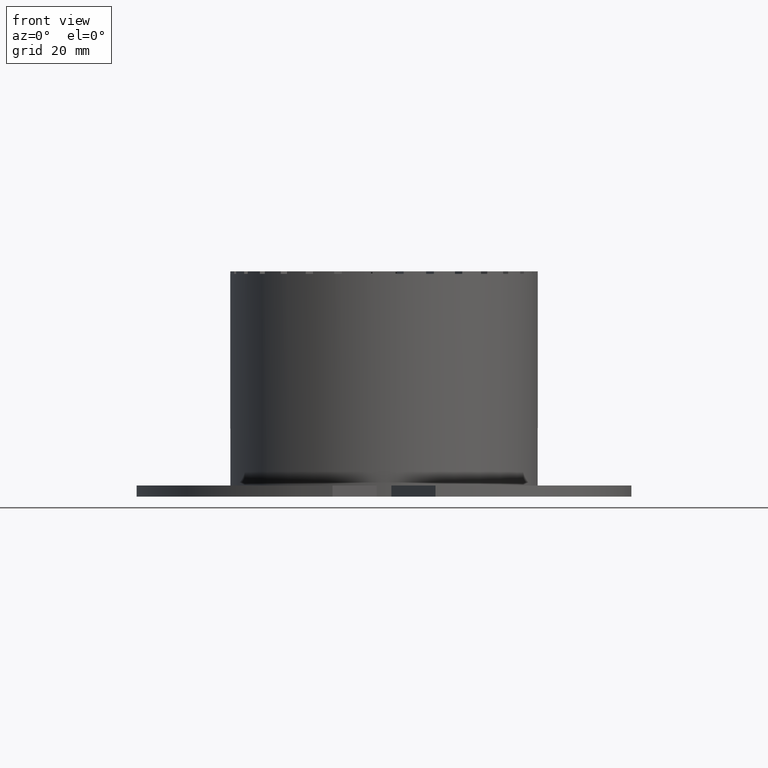
[diagram: clean part render]
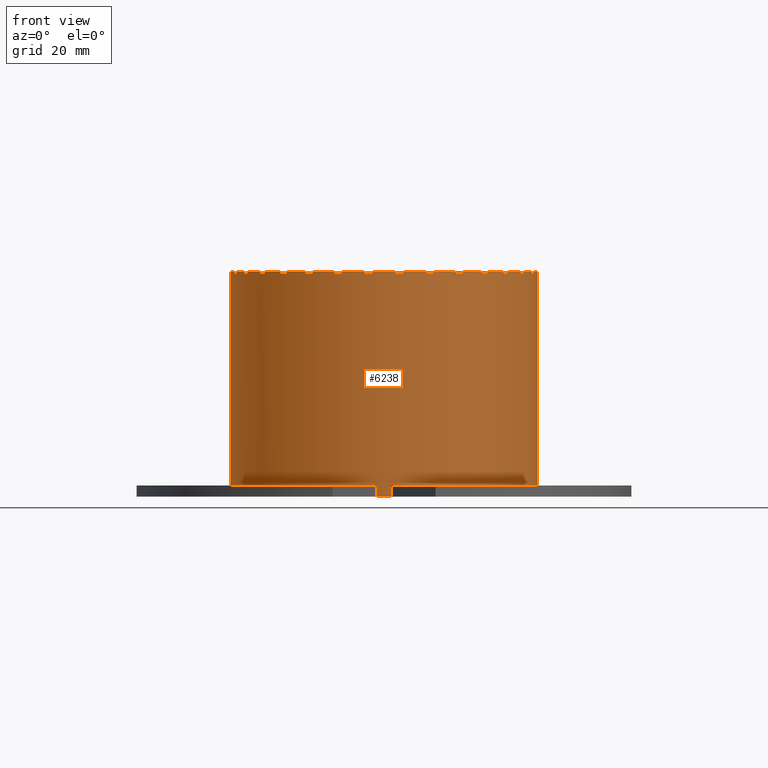
[diagram: same view with one face highlighted and labeled with its STEP entity id]
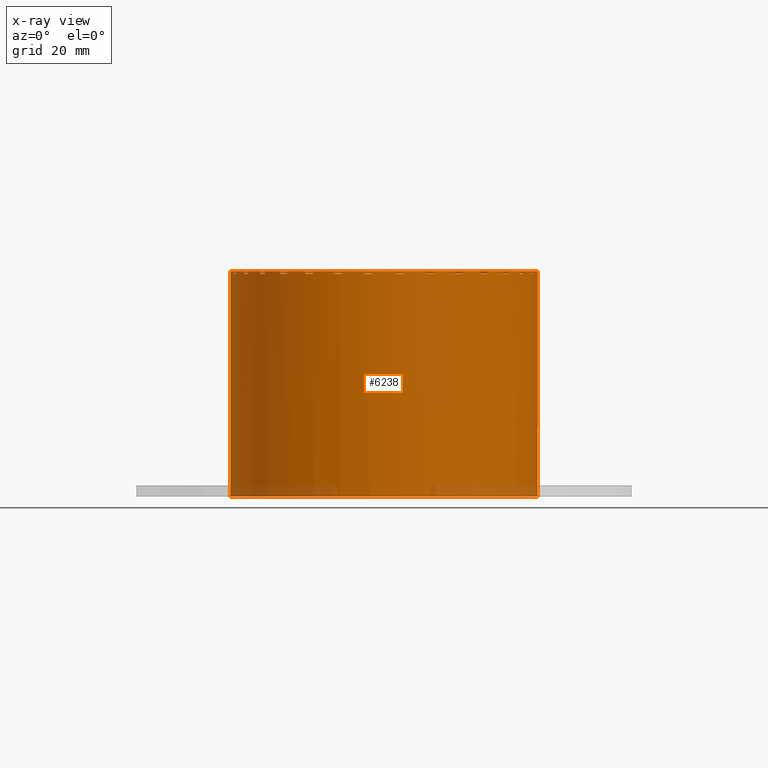
[diagram: x-ray of the same camera — body ghosted, the highlighted face saturated]
A machine part, front view. The second image highlights one B-rep face of the part: STEP entity #6238.
The next image is the same camera in x-ray: the body ghosted, the highlighted face saturated — about 4% of this face is hidden behind the body in this view.
In plain terms, the highlighted cylindrical surface (partial cylindrical patch) has radius 41.5 mm, axis along (0, 0, 1).
Its self-contained STEP definition (entity closure, byte-faithful):
#75=CARTESIAN_POINT('',(1.102660488795173,41.48534849614321,30.749999999999996));
#76=VERTEX_POINT('',#75);
#83=CARTESIAN_POINT('',(1.102660488795173,41.48534849614321,30.050000000000004));
#84=VERTEX_POINT('',#83);
#85=CARTESIAN_POINT('',(1.102660488795173,41.48534849614321,30.050000000000004));
#86=DIRECTION('',(0.0,0.0,1.0));
#87=VECTOR('',#86,0.699999999999996);
#88=LINE('',#85,#87);
#89=EDGE_CURVE('',#84,#76,#88,.T.);
#137=CARTESIAN_POINT('',(7.270850293824927,40.858104899821122,30.749999999999996));
#138=VERTEX_POINT('',#137);
#163=CARTESIAN_POINT('',(7.270850293824927,40.858104899821122,30.050000000000004));
#164=VERTEX_POINT('',#163);
#171=CARTESIAN_POINT('',(7.270850293824927,40.858104899821122,30.050000000000004));
#172=DIRECTION('',(0.0,0.0,1.0));
#173=VECTOR('',#172,0.699999999999996);
#174=LINE('',#171,#173);
#175=EDGE_CURVE('',#164,#138,#174,.T.);
#267=CARTESIAN_POINT('',(0.0,0.0,30.75));
#268=DIRECTION('',(0.0,0.0,-1.0));
#269=DIRECTION('',(0.198937622570728,0.980012154172542,0.0));
#270=AXIS2_PLACEMENT_3D('',#267,#268,#269);
#271=CIRCLE('',#270,41.5);
#272=EDGE_CURVE('',#76,#138,#271,.T.);
#284=CARTESIAN_POINT('',(9.431028221446931,40.4141770507117,30.749999999999996));
#285=VERTEX_POINT('',#284);
#292=CARTESIAN_POINT('',(9.431028221446931,40.4141770507117,30.050000000000004));
#293=VERTEX_POINT('',#292);
#294=CARTESIAN_POINT('',(9.431028221446931,40.4141770507117,30.050000000000004));
#295=DIRECTION('',(0.0,0.0,1.0));
#296=VECTOR('',#295,0.699999999999996);
#297=LINE('',#294,#296);
#298=EDGE_CURVE('',#293,#285,#297,.T.);
#330=CARTESIAN_POINT('',(15.346691611127238,38.558125688276888,30.749999999999996));
#331=VERTEX_POINT('',#330);
#356=CARTESIAN_POINT('',(15.346691611127238,38.558125688276888,30.050000000000004));
#357=VERTEX_POINT('',#356);
#364=CARTESIAN_POINT('',(15.346691611127238,38.558125688276888,30.050000000000004));
#365=DIRECTION('',(0.0,0.0,1.0));
#366=VECTOR('',#365,0.699999999999996);
#367=LINE('',#364,#366);
#368=EDGE_CURVE('',#357,#331,#367,.T.);
#421=CARTESIAN_POINT('',(0.0,0.0,30.75));
#422=DIRECTION('',(0.0,0.0,-1.0));
#423=DIRECTION('',(0.392140354053448,0.919905398789917,0.0));
#424=AXIS2_PLACEMENT_3D('',#421,#422,#423);
#425=CIRCLE('',#424,41.5);
#426=EDGE_CURVE('',#285,#331,#425,.T.);
#438=CARTESIAN_POINT('',(17.373288550613886,37.688444448359895,30.749999999999996));
#439=VERTEX_POINT('',#438);
#446=CARTESIAN_POINT('',(17.373288550613886,37.688444448359895,30.050000000000004));
#447=VERTEX_POINT('',#446);
#448=CARTESIAN_POINT('',(17.373288550613886,37.688444448359895,30.050000000000004));
#449=DIRECTION('',(0.0,0.0,1.0));
#450=VECTOR('',#449,0.699999999999996);
#451=LINE('',#448,#450);
#452=EDGE_CURVE('',#447,#439,#451,.T.);
#484=CARTESIAN_POINT('',(22.794237570710294,34.679572280667195,30.749999999999996));
#485=VERTEX_POINT('',#484);
#510=CARTESIAN_POINT('',(22.794237570710294,34.679572280667195,30.050000000000004));
#511=VERTEX_POINT('',#510);
#518=CARTESIAN_POINT('',(22.794237570710294,34.679572280667195,30.050000000000004));
#519=DIRECTION('',(0.0,0.0,1.0));
#520=VECTOR('',#519,0.699999999999996);
#521=LINE('',#518,#520);
#522=EDGE_CURVE('',#511,#485,#521,.T.);
#575=CARTESIAN_POINT('',(0.0,0.0,30.75));
#576=DIRECTION('',(0.0,0.0,-1.0));
#577=DIRECTION('',(0.569288813366686,0.822137608296537,0.0));
#578=AXIS2_PLACEMENT_3D('',#575,#576,#577);
#579=CIRCLE('',#578,41.499999999999993);
#580=EDGE_CURVE('',#439,#485,#579,.T.);
#592=CARTESIAN_POINT('',(24.604284405243977,33.419742502088042,30.749999999999996));
#593=VERTEX_POINT('',#592);
#600=CARTESIAN_POINT('',(24.604284405243977,33.419742502088042,30.050000000000004));
#601=VERTEX_POINT('',#600);
#602=CARTESIAN_POINT('',(24.604284405243977,33.419742502088042,30.050000000000004));
#603=DIRECTION('',(0.0,0.0,1.0));
#604=VECTOR('',#603,0.699999999999996);
#605=LINE('',#602,#604);
#606=EDGE_CURVE('',#601,#593,#605,.T.);
#638=CARTESIAN_POINT('',(29.308584765939276,29.381233109210257,30.749999999999996));
#639=VERTEX_POINT('',#638);
#664=CARTESIAN_POINT('',(29.308584765939276,29.381233109210257,30.050000000000004));
#665=VERTEX_POINT('',#664);
#672=CARTESIAN_POINT('',(29.308584765939276,29.381233109210257,30.050000000000004));
#673=DIRECTION('',(0.0,0.0,1.0));
#674=VECTOR('',#673,0.699999999999996);
#675=LINE('',#672,#674);
#676=EDGE_CURVE('',#665,#639,#675,.T.);
#729=CARTESIAN_POINT('',(0.0,0.0,30.75));
#730=DIRECTION('',(0.0,0.0,-1.0));
#731=DIRECTION('',(0.723130521772095,0.690711407522431,0.0));
#732=AXIS2_PLACEMENT_3D('',#729,#730,#731);
#733=CIRCLE('',#732,41.5);
#734=EDGE_CURVE('',#593,#639,#733,.T.);
#746=CARTESIAN_POINT('',(30.827977965442706,27.782832371127686,30.749999999999996));
#747=VERTEX_POINT('',#746);
#754=CARTESIAN_POINT('',(30.827977965442706,27.782832371127686,30.050000000000004));
#755=VERTEX_POINT('',#754);
#756=CARTESIAN_POINT('',(30.827977965442706,27.782832371127686,30.050000000000004));
#757=DIRECTION('',(0.0,0.0,1.0));
#758=VECTOR('',#757,0.699999999999996);
#759=LINE('',#756,#758);
#760=EDGE_CURVE('',#755,#747,#759,.T.);
#792=CARTESIAN_POINT('',(34.623035057238219,22.880022802113949,30.749999999999996));
#793=VERTEX_POINT('',#792);
#818=CARTESIAN_POINT('',(34.623035057238219,22.880022802113949,30.050000000000004));
#819=VERTEX_POINT('',#818);
#826=CARTESIAN_POINT('',(34.623035057238219,22.880022802113949,30.050000000000004));
#827=DIRECTION('',(0.0,0.0,1.0));
#828=VECTOR('',#827,0.699999999999996);
#829=LINE('',#826,#828);
#830=EDGE_CURVE('',#819,#793,#829,.T.);
#883=CARTESIAN_POINT('',(0.0,0.0,30.75));
#884=DIRECTION('',(0.0,0.0,-1.0));
#885=DIRECTION('',(0.847367181651927,0.531007400569211,0.0));
#886=AXIS2_PLACEMENT_3D('',#883,#884,#885);
#887=CIRCLE('',#886,41.5);
#888=EDGE_CURVE('',#747,#793,#887,.T.);
#900=CARTESIAN_POINT('',(35.78957048560261,21.008489818549158,30.749999999999996));
#901=VERTEX_POINT('',#900);
#908=CARTESIAN_POINT('',(35.78957048560261,21.008489818549158,30.050000000000004));
#909=VERTEX_POINT('',#908);
#910=CARTESIAN_POINT('',(35.78957048560261,21.008489818549158,30.050000000000004));
#911=DIRECTION('',(0.0,0.0,1.0));
#912=VECTOR('',#911,0.699999999999996);
#913=LINE('',#910,#912);
#914=EDGE_CURVE('',#909,#901,#913,.T.);
#946=CARTESIAN_POINT('',(38.520014225259935,15.442101673210558,30.749999999999996));
#947=VERTEX_POINT('',#946);
#972=CARTESIAN_POINT('',(38.520014225259935,15.442101673210558,30.050000000000004));
#973=VERTEX_POINT('',#972);
#980=CARTESIAN_POINT('',(38.520014225259935,15.442101673210558,30.050000000000004));
#981=DIRECTION('',(0.0,0.0,1.0));
#982=VECTOR('',#981,0.699999999999996);
#983=LINE('',#980,#982);
#984=EDGE_CURVE('',#973,#947,#983,.T.);
#1037=CARTESIAN_POINT('',(0.0,0.0,30.75));
#1038=DIRECTION('',(0.0,0.0,-1.0));
#1039=DIRECTION('',(0.936912529553512,0.349563888245967,0.0));
#1040=AXIS2_PLACEMENT_3D('',#1037,#1038,#1039);
#1041=CIRCLE('',#1040,41.499999999999986);
#1042=EDGE_CURVE('',#901,#947,#1041,.T.);
#1054=CARTESIAN_POINT('',(39.285933784985964,13.374057224406496,30.749999999999996));
#1055=VERTEX_POINT('',#1054);
#1062=CARTESIAN_POINT('',(39.285933784985964,13.374057224406496,30.050000000000004));
#1063=VERTEX_POINT('',#1062);
#1064=CARTESIAN_POINT('',(39.285933784985964,13.374057224406496,30.050000000000004));
#1065=DIRECTION('',(0.0,0.0,1.0));
#1066=VECTOR('',#1065,0.699999999999996);
#1067=LINE('',#1064,#1066);
#1068=EDGE_CURVE('',#1063,#1055,#1067,.T.);
#1100=CARTESIAN_POINT('',(40.839979484990032,7.371979087436024,30.749999999999996));
#1101=VERTEX_POINT('',#1100);
#1126=CARTESIAN_POINT('',(40.839979484990032,7.371979087436024,30.050000000000004));
#1127=VERTEX_POINT('',#1126);
#1134=CARTESIAN_POINT('',(40.839979484990032,7.371979087436024,30.050000000000004));
#1135=DIRECTION('',(0.0,0.0,1.0));
#1136=VECTOR('',#1135,0.699999999999996);
#1137=LINE('',#1134,#1136);
#1138=EDGE_CURVE('',#1127,#1101,#1137,.T.);
#1191=CARTESIAN_POINT('',(0.0,0.0,30.75));
#1192=DIRECTION('',(0.0,0.0,-1.0));
#1193=DIRECTION('',(0.988100568412629,0.153809189265921,0.0));
#1194=AXIS2_PLACEMENT_3D('',#1191,#1192,#1193);
#1195=CIRCLE('',#1194,41.499999999999993);
#1196=EDGE_CURVE('',#1055,#1101,#1195,.T.);
#1208=CARTESIAN_POINT('',(41.173926339310768,5.192089156111627,30.749999999999996));
#1209=VERTEX_POINT('',#1208);
#1216=CARTESIAN_POINT('',(41.173926339310768,5.192089156111627,30.050000000000004));
#1217=VERTEX_POINT('',#1216);
#1218=CARTESIAN_POINT('',(41.173926339310768,5.192089156111627,30.050000000000004));
#1219=DIRECTION('',(0.0,0.0,1.0));
#1220=VECTOR('',#1219,0.699999999999996);
#1221=LINE('',#1218,#1220);
#1222=EDGE_CURVE('',#1217,#1209,#1221,.T.);
#1254=CARTESIAN_POINT('',(41.487951186110791,-0.999953188348903,30.749999999999996));
#1255=VERTEX_POINT('',#1254);
#1280=CARTESIAN_POINT('',(41.487951186110791,-0.999953188348903,30.050000000000004));
#1281=VERTEX_POINT('',#1280);
#1288=CARTESIAN_POINT('',(41.487951186110791,-0.999953188348903,30.050000000000004));
#1289=DIRECTION('',(0.0,0.0,1.0));
#1290=VECTOR('',#1289,0.699999999999996);
#1291=LINE('',#1288,#1290);
#1292=EDGE_CURVE('',#1281,#1255,#1291,.T.);
#1345=CARTESIAN_POINT('',(0.0,0.0,30.75));
#1346=DIRECTION('',(0.0,0.0,-1.0));
#1347=DIRECTION('',(0.998835653904045,-0.048242475994485,0.0));
#1348=AXIS2_PLACEMENT_3D('',#1345,#1346,#1347);
#1349=CIRCLE('',#1348,41.5);
#1350=EDGE_CURVE('',#1209,#1255,#1349,.T.);
#1362=CARTESIAN_POINT('',(41.37625351157326,-3.202443652279027,30.749999999999996));
#1363=VERTEX_POINT('',#1362);
#1370=CARTESIAN_POINT('',(41.37625351157326,-3.202443652279027,30.050000000000004));
#1371=VERTEX_POINT('',#1370);
#1372=CARTESIAN_POINT('',(41.37625351157326,-3.202443652279027,30.050000000000004));
#1373=DIRECTION('',(0.0,0.0,1.0));
#1374=VECTOR('',#1373,0.699999999999996);
#1375=LINE('',#1372,#1374);
#1376=EDGE_CURVE('',#1371,#1363,#1375,.T.);
#1408=CARTESIAN_POINT('',(40.437401291044885,-9.33094726311332,30.749999999999996));
#1409=VERTEX_POINT('',#1408);
#1434=CARTESIAN_POINT('',(40.437401291044885,-9.33094726311332,30.050000000000004));
#1435=VERTEX_POINT('',#1434);
#1442=CARTESIAN_POINT('',(40.437401291044885,-9.33094726311332,30.050000000000004));
#1443=DIRECTION('',(0.0,0.0,1.0));
#1444=VECTOR('',#1443,0.699999999999996);
#1445=LINE('',#1442,#1444);
#1446=EDGE_CURVE('',#1435,#1409,#1445,.T.);
#1499=CARTESIAN_POINT('',(0.0,0.0,30.75));
#1500=DIRECTION('',(0.0,0.0,-1.0));
#1501=DIRECTION('',(0.968678290366424,-0.248319088619426,0.0));
#1502=AXIS2_PLACEMENT_3D('',#1499,#1500,#1501);
#1503=CIRCLE('',#1502,41.499999999999993);
#1504=EDGE_CURVE('',#1363,#1409,#1503,.T.);
#1516=CARTESIAN_POINT('',(39.884632003568591,-11.465868041274216,30.749999999999996));
#1517=VERTEX_POINT('',#1516);
#1524=CARTESIAN_POINT('',(39.884632003568591,-11.465868041274216,30.050000000000004));
#1525=VERTEX_POINT('',#1524);
#1526=CARTESIAN_POINT('',(39.884632003568591,-11.465868041274216,30.050000000000004));
#1527=DIRECTION('',(0.0,0.0,1.0));
#1528=VECTOR('',#1527,0.699999999999996);
#1529=LINE('',#1526,#1528);
#1530=EDGE_CURVE('',#1525,#1517,#1529,.T.);
#1562=CARTESIAN_POINT('',(37.731339435930707,-17.279931260586118,30.749999999999996));
#1563=VERTEX_POINT('',#1562);
#1588=CARTESIAN_POINT('',(37.731339435930707,-17.279931260586118,30.050000000000004));
#1589=VERTEX_POINT('',#1588);
#1596=CARTESIAN_POINT('',(37.731339435930707,-17.279931260586118,30.050000000000004));
#1597=DIRECTION('',(0.0,0.0,1.0));
#1598=VECTOR('',#1597,0.699999999999996);
#1599=LINE('',#1596,#1598);
#1600=EDGE_CURVE('',#1589,#1563,#1599,.T.);
#1653=CARTESIAN_POINT('',(0.0,0.0,30.75));
#1654=DIRECTION('',(0.0,0.0,-1.0));
#1655=DIRECTION('',(0.898863123806335,-0.438229488580033,0.0));
#1656=AXIS2_PLACEMENT_3D('',#1653,#1654,#1655);
#1657=CIRCLE('',#1656,41.499999999999993);
#1658=EDGE_CURVE('',#1517,#1563,#1657,.T.);
#1670=CARTESIAN_POINT('',(36.760128975092542,-19.259878445477355,30.749999999999996));
#1671=VERTEX_POINT('',#1670);
#1678=CARTESIAN_POINT('',(36.760128975092542,-19.259878445477355,30.050000000000004));
#1679=VERTEX_POINT('',#1678);
#1680=CARTESIAN_POINT('',(36.760128975092542,-19.259878445477355,30.050000000000004));
#1681=DIRECTION('',(0.0,0.0,1.0));
#1682=VECTOR('',#1681,0.699999999999996);
#1683=LINE('',#1680,#1682);
#1684=EDGE_CURVE('',#1679,#1671,#1683,.T.);
#1716=CARTESIAN_POINT('',(33.480552111065379,-24.521472841944814,30.749999999999996));
#1717=VERTEX_POINT('',#1716);
#1742=CARTESIAN_POINT('',(33.480552111065379,-24.521472841944814,30.050000000000004));
#1743=VERTEX_POINT('',#1742);
#1750=CARTESIAN_POINT('',(33.480552111065379,-24.521472841944814,30.050000000000004));
#1751=DIRECTION('',(0.0,0.0,1.0));
#1752=VECTOR('',#1751,0.699999999999996);
#1753=LINE('',#1750,#1752);
#1754=EDGE_CURVE('',#1743,#1717,#1753,.T.);
#1807=CARTESIAN_POINT('',(0.0,0.0,30.75));
#1808=DIRECTION('',(0.0,0.0,-1.0));
#1809=DIRECTION('',(0.792248395345682,-0.610198721788396,0.0));
#1810=AXIS2_PLACEMENT_3D('',#1807,#1808,#1809);
#1811=CIRCLE('',#1810,41.5);
#1812=EDGE_CURVE('',#1671,#1717,#1811,.T.);
#1824=CARTESIAN_POINT('',(32.130661947244427,-26.265387163183036,30.749999999999996));
#1825=VERTEX_POINT('',#1824);
#1832=CARTESIAN_POINT('',(32.130661947244427,-26.265387163183036,30.050000000000004));
#1833=VERTEX_POINT('',#1832);
#1834=CARTESIAN_POINT('',(32.130661947244427,-26.265387163183036,30.050000000000004));
#1835=DIRECTION('',(0.0,0.0,1.0));
#1836=VECTOR('',#1835,0.699999999999996);
#1837=LINE('',#1834,#1836);
#1838=EDGE_CURVE('',#1833,#1825,#1837,.T.);
#1870=CARTESIAN_POINT('',(27.85906704897517,-30.759102444003574,30.749999999999996));
#1871=VERTEX_POINT('',#1870);
#1896=CARTESIAN_POINT('',(27.85906704897517,-30.759102444003574,30.050000000000004));
#1897=VERTEX_POINT('',#1896);
#1904=CARTESIAN_POINT('',(27.85906704897517,-30.759102444003574,30.050000000000004));
#1905=DIRECTION('',(0.0,0.0,1.0));
#1906=VECTOR('',#1905,0.699999999999996);
#1907=LINE('',#1904,#1906);
#1908=EDGE_CURVE('',#1897,#1871,#1907,.T.);
#1961=CARTESIAN_POINT('',(0.0,0.0,30.75));
#1962=DIRECTION('',(0.0,0.0,-1.0));
#1963=DIRECTION('',(0.653198924494342,-0.757186347631437,0.0));
#1964=AXIS2_PLACEMENT_3D('',#1961,#1962,#1963);
#1965=CIRCLE('',#1964,41.5);
#1966=EDGE_CURVE('',#1825,#1871,#1965,.T.);
#1978=CARTESIAN_POINT('',(26.185761844083665,-32.195587844376028,30.749999999999996));
#1979=VERTEX_POINT('',#1978);
#1986=CARTESIAN_POINT('',(26.185761844083665,-32.195587844376028,30.050000000000004));
#1987=VERTEX_POINT('',#1986);
#1988=CARTESIAN_POINT('',(26.185761844083665,-32.195587844376028,30.050000000000004));
#1989=DIRECTION('',(0.0,0.0,1.0));
#1990=VECTOR('',#1989,0.699999999999996);
#1991=LINE('',#1988,#1990);
#1992=EDGE_CURVE('',#1987,#1979,#1991,.T.);
#2024=CARTESIAN_POINT('',(21.097028508598545,-35.737450777963737,30.749999999999996));
#2025=VERTEX_POINT('',#2024);
#2050=CARTESIAN_POINT('',(21.097028508598545,-35.737450777963737,30.050000000000004));
#2051=VERTEX_POINT('',#2050);
#2058=CARTESIAN_POINT('',(21.097028508598545,-35.737450777963737,30.050000000000004));
#2059=DIRECTION('',(0.0,0.0,1.0));
#2060=VECTOR('',#2059,0.699999999999996);
#2061=LINE('',#2058,#2060);
#2062=EDGE_CURVE('',#2051,#2025,#2061,.T.);
#2115=CARTESIAN_POINT('',(0.0,0.0,30.75));
#2116=DIRECTION('',(0.0,0.0,-1.0));
#2117=DIRECTION('',(0.48740741292659,-0.873174675436827,0.0));
#2118=AXIS2_PLACEMENT_3D('',#2115,#2116,#2117);
#2119=CIRCLE('',#2118,41.5);
#2120=EDGE_CURVE('',#1979,#2025,#2119,.T.);
#2132=CARTESIAN_POINT('',(19.168813574329736,-36.807697376399318,30.749999999999996));
#2133=VERTEX_POINT('',#2132);
#2140=CARTESIAN_POINT('',(19.168813574329736,-36.807697376399318,30.050000000000004));
#2141=VERTEX_POINT('',#2140);
#2142=CARTESIAN_POINT('',(19.168813574329736,-36.807697376399318,30.050000000000004));
#2143=DIRECTION('',(0.0,0.0,1.0));
#2144=VECTOR('',#2143,0.699999999999996);
#2145=LINE('',#2142,#2144);
#2146=EDGE_CURVE('',#2141,#2133,#2145,.T.);
#2178=CARTESIAN_POINT('',(13.471275142284306,-39.252703678101895,30.749999999999996));
#2179=VERTEX_POINT('',#2178);
#2204=CARTESIAN_POINT('',(13.471275142284306,-39.252703678101895,30.050000000000004));
#2205=VERTEX_POINT('',#2204);
#2212=CARTESIAN_POINT('',(13.471275142284306,-39.252703678101895,30.050000000000004));
#2213=DIRECTION('',(0.0,0.0,1.0));
#2214=VECTOR('',#2213,0.699999999999996);
#2215=LINE('',#2212,#2214);
#2216=EDGE_CURVE('',#2205,#2179,#2215,.T.);
#2269=CARTESIAN_POINT('',(0.0,0.0,30.75));
#2270=DIRECTION('',(0.0,0.0,-1.0));
#2271=DIRECTION('',(0.301661384605683,-0.953415129436166,0.0));
#2272=AXIS2_PLACEMENT_3D('',#2269,#2270,#2271);
#2273=CIRCLE('',#2272,41.499999999999993);
#2274=EDGE_CURVE('',#2133,#2179,#2273,.T.);
#2286=CARTESIAN_POINT('',(11.367091824602792,-39.912895453112021,30.749999999999996));
#2287=VERTEX_POINT('',#2286);
#2294=CARTESIAN_POINT('',(11.367091824602792,-39.912895453112021,30.050000000000004));
#2295=VERTEX_POINT('',#2294);
#2296=CARTESIAN_POINT('',(11.367091824602792,-39.912895453112021,30.050000000000004));
#2297=DIRECTION('',(0.0,0.0,1.0));
#2298=VECTOR('',#2297,0.699999999999996);
#2299=LINE('',#2296,#2298);
#2300=EDGE_CURVE('',#2295,#2287,#2299,.T.);
#2332=CARTESIAN_POINT('',(5.294006188837324,-41.160946277661708,30.749999999999996));
#2333=VERTEX_POINT('',#2332);
#2358=CARTESIAN_POINT('',(5.294006188837324,-41.160946277661708,30.050000000000004));
#2359=VERTEX_POINT('',#2358);
#2366=CARTESIAN_POINT('',(5.294006188837324,-41.160946277661708,30.050000000000004));
#2367=DIRECTION('',(0.0,0.0,1.0));
#2368=VECTOR('',#2367,0.699999999999996);
#2369=LINE('',#2366,#2368);
#2370=EDGE_CURVE('',#2359,#2333,#2369,.T.);
#2423=CARTESIAN_POINT('',(0.0,0.0,30.75));
#2424=DIRECTION('',(0.0,0.0,-1.0));
#2425=DIRECTION('',(0.103565303755313,-0.994622656014868,0.0));
#2426=AXIS2_PLACEMENT_3D('',#2423,#2424,#2425);
#2427=CIRCLE('',#2426,41.499999999999993);
#2428=EDGE_CURVE('',#2287,#2333,#2427,.T.);
#2440=CARTESIAN_POINT('',(3.100000000000025,-41.384054900408216,30.749999999999996));
#2441=VERTEX_POINT('',#2440);
#2448=CARTESIAN_POINT('',(3.100000000000025,-41.384054900408216,30.050000000000004));
#2449=VERTEX_POINT('',#2448);
#2450=CARTESIAN_POINT('',(3.100000000000025,-41.384054900408216,30.050000000000004));
#2451=DIRECTION('',(0.0,0.0,1.0));
#2452=VECTOR('',#2451,0.699999999999996);
#2453=LINE('',#2450,#2452);
#2454=EDGE_CURVE('',#2449,#2441,#2453,.T.);
#2486=CARTESIAN_POINT('',(-3.099999999999976,-41.384054900408216,30.749999999999996));
#2487=VERTEX_POINT('',#2486);
#2512=CARTESIAN_POINT('',(-3.099999999999976,-41.384054900408216,30.050000000000004));
#2513=VERTEX_POINT('',#2512);
#2520=CARTESIAN_POINT('',(-3.099999999999976,-41.384054900408216,30.050000000000004));
#2521=DIRECTION('',(0.0,0.0,1.0));
#2522=VECTOR('',#2521,0.699999999999996);
#2523=LINE('',#2520,#2522);
#2524=EDGE_CURVE('',#2513,#2487,#2523,.T.);
#2577=CARTESIAN_POINT('',(0.0,0.0,30.75));
#2578=DIRECTION('',(0.0,0.0,-1.0));
#2579=DIRECTION('',(-0.098770752799207,-0.99511021419312,0.0));
#2580=AXIS2_PLACEMENT_3D('',#2577,#2578,#2579);
#2581=CIRCLE('',#2580,41.5);
#2582=EDGE_CURVE('',#2441,#2487,#2581,.T.);
#2594=CARTESIAN_POINT('',(-5.294006188837277,-41.160946277661722,30.749999999999996));
#2595=VERTEX_POINT('',#2594);
#2602=CARTESIAN_POINT('',(-5.294006188837277,-41.160946277661722,30.050000000000004));
#2603=VERTEX_POINT('',#2602);
#2604=CARTESIAN_POINT('',(-5.294006188837277,-41.160946277661722,30.050000000000004));
#2605=DIRECTION('',(0.0,0.0,1.0));
#2606=VECTOR('',#2605,0.699999999999996);
#2607=LINE('',#2604,#2606);
#2608=EDGE_CURVE('',#2603,#2595,#2607,.T.);
#2640=CARTESIAN_POINT('',(-11.367091824602744,-39.912895453112014,30.749999999999996));
#2641=VERTEX_POINT('',#2640);
#2666=CARTESIAN_POINT('',(-11.367091824602744,-39.912895453112014,30.050000000000004));
#2667=VERTEX_POINT('',#2666);
#2674=CARTESIAN_POINT('',(-11.367091824602744,-39.912895453112014,30.050000000000004));
#2675=DIRECTION('',(0.0,0.0,1.0));
#2676=VECTOR('',#2675,0.699999999999996);
#2677=LINE('',#2674,#2676);
#2678=EDGE_CURVE('',#2667,#2641,#2677,.T.);
#2731=CARTESIAN_POINT('',(0.0,0.0,30.75));
#2732=DIRECTION('',(0.0,0.0,-1.0));
#2733=DIRECTION('',(-0.297063123129057,-0.954857843281821,0.0));
#2734=AXIS2_PLACEMENT_3D('',#2731,#2732,#2733);
#2735=CIRCLE('',#2734,41.5);
#2736=EDGE_CURVE('',#2595,#2641,#2735,.T.);
#2748=CARTESIAN_POINT('',(-13.471275142284265,-39.252703678101916,30.749999999999996));
#2749=VERTEX_POINT('',#2748);
#2756=CARTESIAN_POINT('',(-13.471275142284265,-39.252703678101916,30.050000000000004));
#2757=VERTEX_POINT('',#2756);
#2758=CARTESIAN_POINT('',(-13.471275142284265,-39.252703678101916,30.050000000000004));
#2759=DIRECTION('',(0.0,0.0,1.0));
#2760=VECTOR('',#2759,0.699999999999996);
#2761=LINE('',#2758,#2760);
#2762=EDGE_CURVE('',#2757,#2749,#2761,.T.);
#2794=CARTESIAN_POINT('',(-19.168813574329697,-36.807697376399339,30.749999999999996));
#2795=VERTEX_POINT('',#2794);
#2820=CARTESIAN_POINT('',(-19.168813574329697,-36.807697376399339,30.050000000000004));
#2821=VERTEX_POINT('',#2820);
#2828=CARTESIAN_POINT('',(-19.168813574329697,-36.807697376399339,30.050000000000004));
#2829=DIRECTION('',(0.0,0.0,1.0));
#2830=VECTOR('',#2829,0.699999999999996);
#2831=LINE('',#2828,#2830);
#2832=EDGE_CURVE('',#2821,#2795,#2831,.T.);
#2885=CARTESIAN_POINT('',(0.0,0.0,30.75));
#2886=DIRECTION('',(0.0,0.0,-1.0));
#2887=DIRECTION('',(-0.483193694294568,-0.875513480075531,0.0));
#2888=AXIS2_PLACEMENT_3D('',#2885,#2886,#2887);
#2889=CIRCLE('',#2888,41.499999999999993);
#2890=EDGE_CURVE('',#2749,#2795,#2889,.T.);
#2902=CARTESIAN_POINT('',(-21.097028508598513,-35.737450777963772,30.749999999999996));
#2903=VERTEX_POINT('',#2902);
#2910=CARTESIAN_POINT('',(-21.097028508598513,-35.737450777963772,30.050000000000004));
#2911=VERTEX_POINT('',#2910);
#2912=CARTESIAN_POINT('',(-21.097028508598513,-35.737450777963772,30.050000000000004));
#2913=DIRECTION('',(0.0,0.0,1.0));
#2914=VECTOR('',#2913,0.699999999999996);
#2915=LINE('',#2912,#2914);
#2916=EDGE_CURVE('',#2911,#2903,#2915,.T.);
#2948=CARTESIAN_POINT('',(-26.185761844083633,-32.19558784437605,30.749999999999996));
#2949=VERTEX_POINT('',#2948);
#2974=CARTESIAN_POINT('',(-26.185761844083633,-32.19558784437605,30.050000000000004));
#2975=VERTEX_POINT('',#2974);
#2982=CARTESIAN_POINT('',(-26.185761844083633,-32.19558784437605,30.050000000000004));
#2983=DIRECTION('',(0.0,0.0,1.0));
#2984=VECTOR('',#2983,0.699999999999996);
#2985=LINE('',#2982,#2984);
#2986=EDGE_CURVE('',#2975,#2949,#2985,.T.);
#3039=CARTESIAN_POINT('',(0.0,0.0,30.75));
#3040=DIRECTION('',(0.0,0.0,-1.0));
#3041=DIRECTION('',(-0.649542258842811,-0.760325492126483,0.0));
#3042=AXIS2_PLACEMENT_3D('',#3039,#3040,#3041);
#3043=CIRCLE('',#3042,41.499999999999993);
#3044=EDGE_CURVE('',#2903,#2949,#3043,.T.);
#3056=CARTESIAN_POINT('',(-27.859067048975138,-30.759102444003613,30.749999999999996));
#3057=VERTEX_POINT('',#3056);
#3064=CARTESIAN_POINT('',(-27.859067048975138,-30.759102444003613,30.050000000000004));
#3065=VERTEX_POINT('',#3064);
#3066=CARTESIAN_POINT('',(-27.859067048975138,-30.759102444003613,30.050000000000004));
#3067=DIRECTION('',(0.0,0.0,1.0));
#3068=VECTOR('',#3067,0.699999999999996);
#3069=LINE('',#3066,#3068);
#3070=EDGE_CURVE('',#3065,#3057,#3069,.T.);
#3102=CARTESIAN_POINT('',(-32.130661947244391,-26.265387163183064,30.749999999999996));
#3103=VERTEX_POINT('',#3102);
#3128=CARTESIAN_POINT('',(-32.130661947244391,-26.265387163183064,30.050000000000004));
#3129=VERTEX_POINT('',#3128);
#3136=CARTESIAN_POINT('',(-32.130661947244391,-26.265387163183064,30.050000000000004));
#3137=DIRECTION('',(0.0,0.0,1.0));
#3138=VECTOR('',#3137,0.699999999999996);
#3139=LINE('',#3136,#3138);
#3140=EDGE_CURVE('',#3129,#3103,#3139,.T.);
#3193=CARTESIAN_POINT('',(0.0,0.0,30.75));
#3194=DIRECTION('',(0.0,0.0,-1.0));
#3195=DIRECTION('',(-0.789298486996054,-0.614009689195325,0.0));
#3196=AXIS2_PLACEMENT_3D('',#3193,#3194,#3195);
#3197=CIRCLE('',#3196,41.499999999999993);
#3198=EDGE_CURVE('',#3057,#3103,#3197,.T.);
#3210=CARTESIAN_POINT('',(-33.480552111065336,-24.521472841944867,30.749999999999996));
#3211=VERTEX_POINT('',#3210);
#3218=CARTESIAN_POINT('',(-33.480552111065336,-24.521472841944867,30.050000000000004));
#3219=VERTEX_POINT('',#3218);
#3220=CARTESIAN_POINT('',(-33.480552111065336,-24.521472841944867,30.050000000000004));
#3221=DIRECTION('',(0.0,0.0,1.0));
#3222=VECTOR('',#3221,0.699999999999996);
#3223=LINE('',#3220,#3222);
#3224=EDGE_CURVE('',#3219,#3211,#3223,.T.);
#3256=CARTESIAN_POINT('',(-36.760128975092513,-19.259878445477412,30.749999999999996));
#3257=VERTEX_POINT('',#3256);
#3282=CARTESIAN_POINT('',(-36.760128975092513,-19.259878445477412,30.050000000000004));
#3283=VERTEX_POINT('',#3282);
#3290=CARTESIAN_POINT('',(-36.760128975092513,-19.259878445477412,30.050000000000004));
#3291=DIRECTION('',(0.0,0.0,1.0));
#3292=VECTOR('',#3291,0.699999999999996);
#3293=LINE('',#3290,#3292);
#3294=EDGE_CURVE('',#3283,#3257,#3293,.T.);
#3347=CARTESIAN_POINT('',(0.0,0.0,30.75));
#3348=DIRECTION('',(0.0,0.0,-1.0));
#3349=DIRECTION('',(-0.896740742353045,-0.442556257445435,0.0));
#3350=AXIS2_PLACEMENT_3D('',#3347,#3348,#3349);
#3351=CIRCLE('',#3350,41.499999999999993);
#3352=EDGE_CURVE('',#3211,#3257,#3351,.T.);
#3364=CARTESIAN_POINT('',(-37.731339435930686,-17.279931260586171,30.749999999999996));
#3365=VERTEX_POINT('',#3364);
#3372=CARTESIAN_POINT('',(-37.731339435930686,-17.279931260586171,30.050000000000004));
#3373=VERTEX_POINT('',#3372);
#3374=CARTESIAN_POINT('',(-37.731339435930686,-17.279931260586171,30.050000000000004));
#3375=DIRECTION('',(0.0,0.0,1.0));
#3376=VECTOR('',#3375,0.699999999999996);
#3377=LINE('',#3374,#3376);
#3378=EDGE_CURVE('',#3373,#3365,#3377,.T.);
#3410=CARTESIAN_POINT('',(-39.884632003568569,-11.465868041274272,30.749999999999996));
#3411=VERTEX_POINT('',#3410);
#3436=CARTESIAN_POINT('',(-39.884632003568569,-11.465868041274272,30.050000000000004));
#3437=VERTEX_POINT('',#3436);
#3444=CARTESIAN_POINT('',(-39.884632003568569,-11.465868041274272,30.050000000000004));
#3445=DIRECTION('',(0.0,0.0,1.0));
#3446=VECTOR('',#3445,0.699999999999996);
#3447=LINE('',#3444,#3446);
#3448=EDGE_CURVE('',#3437,#3411,#3447,.T.);
#3501=CARTESIAN_POINT('',(0.0,0.0,30.75));
#3502=DIRECTION('',(0.0,0.0,-1.0));
#3503=DIRECTION('',(-0.967470326355538,-0.252984520517576,0.0));
#3504=AXIS2_PLACEMENT_3D('',#3501,#3502,#3503);
#3505=CIRCLE('',#3504,41.499999999999993);
#3506=EDGE_CURVE('',#3365,#3411,#3505,.T.);
#3518=CARTESIAN_POINT('',(-40.437401291044885,-9.330947263113373,30.749999999999996));
#3519=VERTEX_POINT('',#3518);
#3526=CARTESIAN_POINT('',(-40.437401291044885,-9.330947263113373,30.050000000000004));
#3527=VERTEX_POINT('',#3526);
#3528=CARTESIAN_POINT('',(-40.437401291044885,-9.330947263113373,30.050000000000004));
#3529=DIRECTION('',(0.0,0.0,1.0));
#3530=VECTOR('',#3529,0.699999999999996);
#3531=LINE('',#3528,#3530);
#3532=EDGE_CURVE('',#3527,#3519,#3531,.T.);
#3564=CARTESIAN_POINT('',(-41.376253511573253,-3.202443652279079,30.749999999999996));
#3565=VERTEX_POINT('',#3564);
#3590=CARTESIAN_POINT('',(-41.376253511573253,-3.202443652279079,30.050000000000004));
#3591=VERTEX_POINT('',#3590);
#3598=CARTESIAN_POINT('',(-41.376253511573253,-3.202443652279079,30.050000000000004));
#3599=DIRECTION('',(0.0,0.0,1.0));
#3600=VECTOR('',#3599,0.699999999999996);
#3601=LINE('',#3598,#3600);
#3602=EDGE_CURVE('',#3591,#3565,#3601,.T.);
#3655=CARTESIAN_POINT('',(0.0,0.0,30.75));
#3656=DIRECTION('',(0.0,0.0,-1.0));
#3657=DIRECTION('',(-0.9985915615241,-0.053055567595309,0.0));
#3658=AXIS2_PLACEMENT_3D('',#3655,#3656,#3657);
#3659=CIRCLE('',#3658,41.5);
#3660=EDGE_CURVE('',#3519,#3565,#3659,.T.);
#3672=CARTESIAN_POINT('',(-41.487951186110791,-0.999953188348959,30.749999999999996));
#3673=VERTEX_POINT('',#3672);
#3680=CARTESIAN_POINT('',(-41.487951186110791,-0.999953188348959,30.050000000000004));
#3681=VERTEX_POINT('',#3680);
#3682=CARTESIAN_POINT('',(-41.487951186110791,-0.999953188348959,30.050000000000004));
#3683=DIRECTION('',(0.0,0.0,1.0));
#3684=VECTOR('',#3683,0.699999999999996);
#3685=LINE('',#3682,#3684);
#3686=EDGE_CURVE('',#3681,#3673,#3685,.T.);
#3718=CARTESIAN_POINT('',(-41.173926339310768,5.19208915611157,30.749999999999996));
#3719=VERTEX_POINT('',#3718);
#3744=CARTESIAN_POINT('',(-41.173926339310768,5.19208915611157,30.050000000000004));
#3745=VERTEX_POINT('',#3744);
#3752=CARTESIAN_POINT('',(-41.173926339310768,5.19208915611157,30.050000000000004));
#3753=DIRECTION('',(0.0,0.0,1.0));
#3754=VECTOR('',#3753,0.699999999999996);
#3755=LINE('',#3752,#3754);
#3756=EDGE_CURVE('',#3745,#3719,#3755,.T.);
#3809=CARTESIAN_POINT('',(0.0,0.0,30.75));
#3810=DIRECTION('',(0.0,0.0,-1.0));
#3811=DIRECTION('',(-0.988830340834338,0.149045486498075,0.0));
#3812=AXIS2_PLACEMENT_3D('',#3809,#3810,#3811);
#3813=CIRCLE('',#3812,41.499999999999993);
#3814=EDGE_CURVE('',#3673,#3719,#3813,.T.);
#3826=CARTESIAN_POINT('',(-40.839979484990046,7.37197908743597,30.749999999999996));
#3827=VERTEX_POINT('',#3826);
#3834=CARTESIAN_POINT('',(-40.839979484990046,7.37197908743597,30.050000000000004));
#3835=VERTEX_POINT('',#3834);
#3836=CARTESIAN_POINT('',(-40.839979484990046,7.37197908743597,30.050000000000004));
#3837=DIRECTION('',(0.0,0.0,1.0));
#3838=VECTOR('',#3837,0.699999999999996);
#3839=LINE('',#3836,#3838);
#3840=EDGE_CURVE('',#3835,#3827,#3839,.T.);
#3872=CARTESIAN_POINT('',(-39.285933784985978,13.374057224406437,30.749999999999996));
#3873=VERTEX_POINT('',#3872);
#3898=CARTESIAN_POINT('',(-39.285933784985978,13.374057224406437,30.050000000000004));
#3899=VERTEX_POINT('',#3898);
#3906=CARTESIAN_POINT('',(-39.285933784985978,13.374057224406437,30.050000000000004));
#3907=DIRECTION('',(0.0,0.0,1.0));
#3908=VECTOR('',#3907,0.699999999999996);
#3909=LINE('',#3906,#3908);
#3910=EDGE_CURVE('',#3899,#3873,#3909,.T.);
#3963=CARTESIAN_POINT('',(0.0,0.0,30.75));
#3964=DIRECTION('',(0.0,0.0,-1.0));
#3965=DIRECTION('',(-0.938586289808186,0.345044600862126,0.0));
#3966=AXIS2_PLACEMENT_3D('',#3963,#3964,#3965);
#3967=CIRCLE('',#3966,41.499999999999993);
#3968=EDGE_CURVE('',#3827,#3873,#3967,.T.);
#3980=CARTESIAN_POINT('',(-38.52001422525997,15.442101673210512,30.749999999999996));
#3981=VERTEX_POINT('',#3980);
#3988=CARTESIAN_POINT('',(-38.52001422525997,15.442101673210512,30.050000000000004));
#3989=VERTEX_POINT('',#3988);
#3990=CARTESIAN_POINT('',(-38.52001422525997,15.442101673210512,30.050000000000004));
#3991=DIRECTION('',(0.0,0.0,1.0));
#3992=VECTOR('',#3991,0.699999999999996);
#3993=LINE('',#3990,#3992);
#3994=EDGE_CURVE('',#3989,#3981,#3993,.T.);
#4026=CARTESIAN_POINT('',(-35.789570485602631,21.008489818549112,30.749999999999996));
#4027=VERTEX_POINT('',#4026);
#4052=CARTESIAN_POINT('',(-35.789570485602631,21.008489818549112,30.050000000000004));
#4053=VERTEX_POINT('',#4052);
#4060=CARTESIAN_POINT('',(-35.789570485602631,21.008489818549112,30.050000000000004));
#4061=DIRECTION('',(0.0,0.0,1.0));
#4062=VECTOR('',#4061,0.699999999999996);
#4063=LINE('',#4060,#4062);
#4064=EDGE_CURVE('',#4053,#4027,#4063,.T.);
#4117=CARTESIAN_POINT('',(0.0,0.0,30.75));
#4118=DIRECTION('',(0.0,0.0,-1.0));
#4119=DIRECTION('',(-0.849916405798081,0.526917548725863,0.0));
#4120=AXIS2_PLACEMENT_3D('',#4117,#4118,#4119);
#4121=CIRCLE('',#4120,41.5);
#4122=EDGE_CURVE('',#3981,#4027,#4121,.T.);
#4134=CARTESIAN_POINT('',(-34.623035057238255,22.880022802113906,30.749999999999996));
#4135=VERTEX_POINT('',#4134);
#4142=CARTESIAN_POINT('',(-34.623035057238255,22.880022802113906,30.050000000000004));
#4143=VERTEX_POINT('',#4142);
#4144=CARTESIAN_POINT('',(-34.623035057238255,22.880022802113906,30.050000000000004));
#4145=DIRECTION('',(0.0,0.0,1.0));
#4146=VECTOR('',#4145,0.699999999999996);
#4147=LINE('',#4144,#4146);
#4148=EDGE_CURVE('',#4143,#4135,#4147,.T.);
#4180=CARTESIAN_POINT('',(-30.827977965442741,27.782832371127633,30.749999999999996));
#4181=VERTEX_POINT('',#4180);
#4206=CARTESIAN_POINT('',(-30.827977965442741,27.782832371127633,30.050000000000004));
#4207=VERTEX_POINT('',#4206);
#4214=CARTESIAN_POINT('',(-30.827977965442741,27.782832371127633,30.050000000000004));
#4215=DIRECTION('',(0.0,0.0,1.0));
#4216=VECTOR('',#4215,0.699999999999996);
#4217=LINE('',#4214,#4216);
#4218=EDGE_CURVE('',#4207,#4181,#4217,.T.);
#4271=CARTESIAN_POINT('',(0.0,0.0,30.75));
#4272=DIRECTION('',(0.0,0.0,-1.0));
#4273=DIRECTION('',(-0.726450844273665,0.687218430234579,0.0));
#4274=AXIS2_PLACEMENT_3D('',#4271,#4272,#4273);
#4275=CIRCLE('',#4274,41.5);
#4276=EDGE_CURVE('',#4135,#4181,#4275,.T.);
#4288=CARTESIAN_POINT('',(-29.308584765939315,29.381233109210218,30.749999999999996));
#4289=VERTEX_POINT('',#4288);
#4296=CARTESIAN_POINT('',(-29.308584765939315,29.381233109210218,30.050000000000004));
#4297=VERTEX_POINT('',#4296);
#4298=CARTESIAN_POINT('',(-29.308584765939315,29.381233109210218,30.050000000000004));
#4299=DIRECTION('',(0.0,0.0,1.0));
#4300=VECTOR('',#4299,0.699999999999996);
#4301=LINE('',#4298,#4300);
#4302=EDGE_CURVE('',#4297,#4289,#4301,.T.);
#4334=CARTESIAN_POINT('',(-24.604284405244009,33.419742502087992,30.749999999999996));
#4335=VERTEX_POINT('',#4334);
#4360=CARTESIAN_POINT('',(-24.604284405244009,33.419742502087992,30.050000000000004));
#4361=VERTEX_POINT('',#4360);
#4368=CARTESIAN_POINT('',(-24.604284405244009,33.419742502087992,30.050000000000004));
#4369=DIRECTION('',(0.0,0.0,1.0));
#4370=VECTOR('',#4369,0.699999999999996);
#4371=LINE('',#4368,#4370);
#4372=EDGE_CURVE('',#4361,#4335,#4371,.T.);
#4425=CARTESIAN_POINT('',(0.0,0.0,30.75));
#4426=DIRECTION('',(0.0,0.0,-1.0));
#4427=DIRECTION('',(-0.573244299830335,0.819384508464755,0.0));
#4428=AXIS2_PLACEMENT_3D('',#4425,#4426,#4427);
#4429=CIRCLE('',#4428,41.499999999999993);
#4430=EDGE_CURVE('',#4289,#4335,#4429,.T.);
#4442=CARTESIAN_POINT('',(-22.794237570710333,34.679572280667166,30.749999999999996));
#4443=VERTEX_POINT('',#4442);
#4450=CARTESIAN_POINT('',(-22.794237570710333,34.679572280667166,30.050000000000004));
#4451=VERTEX_POINT('',#4450);
#4452=CARTESIAN_POINT('',(-22.794237570710333,34.679572280667166,30.050000000000004));
#4453=DIRECTION('',(0.0,0.0,1.0));
#4454=VECTOR('',#4453,0.699999999999996);
#4455=LINE('',#4452,#4454);
#4456=EDGE_CURVE('',#4451,#4443,#4455,.T.);
#4488=CARTESIAN_POINT('',(-17.373288550613928,37.688444448359874,30.749999999999996));
#4489=VERTEX_POINT('',#4488);
#4514=CARTESIAN_POINT('',(-17.373288550613928,37.688444448359874,30.050000000000004));
#4515=VERTEX_POINT('',#4514);
#4522=CARTESIAN_POINT('',(-17.373288550613928,37.688444448359874,30.050000000000004));
#4523=DIRECTION('',(0.0,0.0,1.0));
#4524=VECTOR('',#4523,0.699999999999996);
#4525=LINE('',#4522,#4524);
#4526=EDGE_CURVE('',#4515,#4489,#4525,.T.);
#4579=CARTESIAN_POINT('',(0.0,0.0,30.75));
#4580=DIRECTION('',(0.0,0.0,-1.0));
#4581=DIRECTION('',(-0.396569066398606,0.918004888644793,0.0));
#4582=AXIS2_PLACEMENT_3D('',#4579,#4580,#4581);
#4583=CIRCLE('',#4582,41.499999999999993);
#4584=EDGE_CURVE('',#4443,#4489,#4583,.T.);
#4596=CARTESIAN_POINT('',(-15.34669161112728,38.558125688276867,30.749999999999996));
#4597=VERTEX_POINT('',#4596);
#4604=CARTESIAN_POINT('',(-15.34669161112728,38.558125688276867,30.050000000000004));
#4605=VERTEX_POINT('',#4604);
#4606=CARTESIAN_POINT('',(-15.34669161112728,38.558125688276867,30.050000000000004));
#4607=DIRECTION('',(0.0,0.0,1.0));
#4608=VECTOR('',#4607,0.699999999999996);
#4609=LINE('',#4606,#4608);
#4610=EDGE_CURVE('',#4605,#4597,#4609,.T.);
#4642=CARTESIAN_POINT('',(-9.431028221446974,40.414177050711693,30.749999999999996));
#4643=VERTEX_POINT('',#4642);
#4668=CARTESIAN_POINT('',(-9.431028221446974,40.414177050711693,30.050000000000004));
#4669=VERTEX_POINT('',#4668);
#4676=CARTESIAN_POINT('',(-9.431028221446974,40.414177050711693,30.050000000000004));
#4677=DIRECTION('',(0.0,0.0,1.0));
#4678=VECTOR('',#4677,0.699999999999996);
#4679=LINE('',#4676,#4678);
#4680=EDGE_CURVE('',#4669,#4643,#4679,.T.);
#4733=CARTESIAN_POINT('',(0.0,0.0,30.75));
#4734=DIRECTION('',(0.0,0.0,-1.0));
#4735=DIRECTION('',(-0.203658248793631,0.979042040822718,0.0));
#4736=AXIS2_PLACEMENT_3D('',#4733,#4734,#4735);
#4737=CIRCLE('',#4736,41.499999999999993);
#4738=EDGE_CURVE('',#4597,#4643,#4737,.T.);
#4758=CARTESIAN_POINT('',(-7.270850293824972,40.858104899821122,30.050000000000004));
#4759=VERTEX_POINT('',#4758);
#4766=CARTESIAN_POINT('',(0.0,0.0,30.050000000000004));
#4767=DIRECTION('',(0.0,0.0,-1.0));
#4768=DIRECTION('',(0.002409638554217,-0.999997096816805,0.0));
#4769=AXIS2_PLACEMENT_3D('',#4766,#4767,#4768);
#4770=CIRCLE('',#4769,41.5);
#4771=EDGE_CURVE('',#4669,#4759,#4770,.T.);
#4790=CARTESIAN_POINT('',(0.0,0.0,30.050000000000004));
#4791=DIRECTION('',(0.0,0.0,-1.0));
#4792=DIRECTION('',(0.002409638554217,-0.999997096816805,0.0));
#4793=AXIS2_PLACEMENT_3D('',#4790,#4791,#4792);
#4794=CIRCLE('',#4793,41.5);
#4795=EDGE_CURVE('',#4515,#4605,#4794,.T.);
#4814=CARTESIAN_POINT('',(0.0,0.0,30.050000000000004));
#4815=DIRECTION('',(0.0,0.0,-1.0));
#4816=DIRECTION('',(0.002409638554217,-0.999997096816805,0.0));
#4817=AXIS2_PLACEMENT_3D('',#4814,#4815,#4816);
#4818=CIRCLE('',#4817,41.5);
#4819=EDGE_CURVE('',#4361,#4451,#4818,.T.);
#4838=CARTESIAN_POINT('',(0.0,0.0,30.050000000000004));
#4839=DIRECTION('',(0.0,0.0,-1.0));
#4840=DIRECTION('',(0.002409638554217,-0.999997096816805,0.0));
#4841=AXIS2_PLACEMENT_3D('',#4838,#4839,#4840);
#4842=CIRCLE('',#4841,41.5);
#4843=EDGE_CURVE('',#4207,#4297,#4842,.T.);
#4862=CARTESIAN_POINT('',(0.0,0.0,30.050000000000004));
#4863=DIRECTION('',(0.0,0.0,-1.0));
#4864=DIRECTION('',(0.002409638554217,-0.999997096816805,0.0));
#4865=AXIS2_PLACEMENT_3D('',#4862,#4863,#4864);
#4866=CIRCLE('',#4865,41.5);
#4867=EDGE_CURVE('',#4053,#4143,#4866,.T.);
#4886=CARTESIAN_POINT('',(0.0,0.0,30.050000000000004));
#4887=DIRECTION('',(0.0,0.0,-1.0));
#4888=DIRECTION('',(0.002409638554217,-0.999997096816805,0.0));
#4889=AXIS2_PLACEMENT_3D('',#4886,#4887,#4888);
#4890=CIRCLE('',#4889,41.5);
#4891=EDGE_CURVE('',#3899,#3989,#4890,.T.);
#4910=CARTESIAN_POINT('',(0.0,0.0,30.050000000000004));
#4911=DIRECTION('',(0.0,0.0,-1.0));
#4912=DIRECTION('',(0.002409638554217,-0.999997096816805,0.0));
#4913=AXIS2_PLACEMENT_3D('',#4910,#4911,#4912);
#4914=CIRCLE('',#4913,41.5);
#4915=EDGE_CURVE('',#3745,#3835,#4914,.T.);
#4934=CARTESIAN_POINT('',(0.0,0.0,30.050000000000004));
#4935=DIRECTION('',(0.0,0.0,-1.0));
#4936=DIRECTION('',(0.002409638554217,-0.999997096816805,0.0));
#4937=AXIS2_PLACEMENT_3D('',#4934,#4935,#4936);
#4938=CIRCLE('',#4937,41.5);
#4939=EDGE_CURVE('',#3591,#3681,#4938,.T.);
#4958=CARTESIAN_POINT('',(0.0,0.0,30.050000000000004));
#4959=DIRECTION('',(0.0,0.0,-1.0));
#4960=DIRECTION('',(0.002409638554217,-0.999997096816805,0.0));
#4961=AXIS2_PLACEMENT_3D('',#4958,#4959,#4960);
#4962=CIRCLE('',#4961,41.5);
#4963=EDGE_CURVE('',#3437,#3527,#4962,.T.);
#4982=CARTESIAN_POINT('',(0.0,0.0,30.050000000000004));
#4983=DIRECTION('',(0.0,0.0,-1.0));
#4984=DIRECTION('',(0.002409638554217,-0.999997096816805,0.0));
#4985=AXIS2_PLACEMENT_3D('',#4982,#4983,#4984);
#4986=CIRCLE('',#4985,41.5);
#4987=EDGE_CURVE('',#3283,#3373,#4986,.T.);
#5006=CARTESIAN_POINT('',(0.0,0.0,30.050000000000004));
#5007=DIRECTION('',(0.0,0.0,-1.0));
#5008=DIRECTION('',(0.002409638554217,-0.999997096816805,0.0));
#5009=AXIS2_PLACEMENT_3D('',#5006,#5007,#5008);
#5010=CIRCLE('',#5009,41.5);
#5011=EDGE_CURVE('',#3129,#3219,#5010,.T.);
#5030=CARTESIAN_POINT('',(0.0,0.0,30.050000000000004));
#5031=DIRECTION('',(0.0,0.0,-1.0));
#5032=DIRECTION('',(0.002409638554217,-0.999997096816805,0.0));
#5033=AXIS2_PLACEMENT_3D('',#5030,#5031,#5032);
#5034=CIRCLE('',#5033,41.5);
#5035=EDGE_CURVE('',#2975,#3065,#5034,.T.);
#5054=CARTESIAN_POINT('',(0.0,0.0,30.050000000000004));
#5055=DIRECTION('',(0.0,0.0,-1.0));
#5056=DIRECTION('',(0.002409638554217,-0.999997096816805,0.0));
#5057=AXIS2_PLACEMENT_3D('',#5054,#5055,#5056);
#5058=CIRCLE('',#5057,41.5);
#5059=EDGE_CURVE('',#2821,#2911,#5058,.T.);
#5078=CARTESIAN_POINT('',(0.0,0.0,30.050000000000004));
#5079=DIRECTION('',(0.0,0.0,-1.0));
#5080=DIRECTION('',(0.002409638554217,-0.999997096816805,0.0));
#5081=AXIS2_PLACEMENT_3D('',#5078,#5079,#5080);
#5082=CIRCLE('',#5081,41.5);
#5083=EDGE_CURVE('',#2667,#2757,#5082,.T.);
#5102=CARTESIAN_POINT('',(0.0,0.0,30.050000000000004));
#5103=DIRECTION('',(0.0,0.0,-1.0));
#5104=DIRECTION('',(0.002409638554217,-0.999997096816805,0.0));
#5105=AXIS2_PLACEMENT_3D('',#5102,#5103,#5104);
#5106=CIRCLE('',#5105,41.5);
#5107=EDGE_CURVE('',#2513,#2603,#5106,.T.);
#5126=CARTESIAN_POINT('',(0.0,0.0,30.050000000000004));
#5127=DIRECTION('',(0.0,0.0,-1.0));
#5128=DIRECTION('',(0.002409638554217,-0.999997096816805,0.0));
#5129=AXIS2_PLACEMENT_3D('',#5126,#5127,#5128);
#5130=CIRCLE('',#5129,41.5);
#5131=EDGE_CURVE('',#2359,#2449,#5130,.T.);
#5150=CARTESIAN_POINT('',(0.0,0.0,30.050000000000004));
#5151=DIRECTION('',(0.0,0.0,-1.0));
#5152=DIRECTION('',(0.002409638554217,-0.999997096816805,0.0));
#5153=AXIS2_PLACEMENT_3D('',#5150,#5151,#5152);
#5154=CIRCLE('',#5153,41.5);
#5155=EDGE_CURVE('',#2205,#2295,#5154,.T.);
#5174=CARTESIAN_POINT('',(0.0,0.0,30.050000000000004));
#5175=DIRECTION('',(0.0,0.0,-1.0));
#5176=DIRECTION('',(0.002409638554217,-0.999997096816805,0.0));
#5177=AXIS2_PLACEMENT_3D('',#5174,#5175,#5176);
#5178=CIRCLE('',#5177,41.5);
#5179=EDGE_CURVE('',#2051,#2141,#5178,.T.);
#5198=CARTESIAN_POINT('',(0.0,0.0,30.050000000000004));
#5199=DIRECTION('',(0.0,0.0,-1.0));
#5200=DIRECTION('',(0.002409638554217,-0.999997096816805,0.0));
#5201=AXIS2_PLACEMENT_3D('',#5198,#5199,#5200);
#5202=CIRCLE('',#5201,41.5);
#5203=EDGE_CURVE('',#1897,#1987,#5202,.T.);
#5222=CARTESIAN_POINT('',(0.0,0.0,30.050000000000004));
#5223=DIRECTION('',(0.0,0.0,-1.0));
#5224=DIRECTION('',(0.002409638554217,-0.999997096816805,0.0));
#5225=AXIS2_PLACEMENT_3D('',#5222,#5223,#5224);
#5226=CIRCLE('',#5225,41.5);
#5227=EDGE_CURVE('',#1743,#1833,#5226,.T.);
#5246=CARTESIAN_POINT('',(0.0,0.0,30.050000000000004));
#5247=DIRECTION('',(0.0,0.0,-1.0));
#5248=DIRECTION('',(0.002409638554217,-0.999997096816805,0.0));
#5249=AXIS2_PLACEMENT_3D('',#5246,#5247,#5248);
#5250=CIRCLE('',#5249,41.5);
#5251=EDGE_CURVE('',#1589,#1679,#5250,.T.);
#5270=CARTESIAN_POINT('',(0.0,0.0,30.050000000000004));
#5271=DIRECTION('',(0.0,0.0,-1.0));
#5272=DIRECTION('',(0.002409638554217,-0.999997096816805,0.0));
#5273=AXIS2_PLACEMENT_3D('',#5270,#5271,#5272);
#5274=CIRCLE('',#5273,41.5);
#5275=EDGE_CURVE('',#1435,#1525,#5274,.T.);
#5294=CARTESIAN_POINT('',(0.0,0.0,30.050000000000004));
#5295=DIRECTION('',(0.0,0.0,-1.0));
#5296=DIRECTION('',(0.002409638554217,-0.999997096816805,0.0));
#5297=AXIS2_PLACEMENT_3D('',#5294,#5295,#5296);
#5298=CIRCLE('',#5297,41.5);
#5299=EDGE_CURVE('',#1281,#1371,#5298,.T.);
#5318=CARTESIAN_POINT('',(0.0,0.0,30.050000000000004));
#5319=DIRECTION('',(0.0,0.0,-1.0));
#5320=DIRECTION('',(0.002409638554217,-0.999997096816805,0.0));
#5321=AXIS2_PLACEMENT_3D('',#5318,#5319,#5320);
#5322=CIRCLE('',#5321,41.5);
#5323=EDGE_CURVE('',#1127,#1217,#5322,.T.);
#5342=CARTESIAN_POINT('',(0.0,0.0,30.050000000000004));
#5343=DIRECTION('',(0.0,0.0,-1.0));
#5344=DIRECTION('',(0.002409638554217,-0.999997096816805,0.0));
#5345=AXIS2_PLACEMENT_3D('',#5342,#5343,#5344);
#5346=CIRCLE('',#5345,41.5);
#5347=EDGE_CURVE('',#973,#1063,#5346,.T.);
#5366=CARTESIAN_POINT('',(0.0,0.0,30.050000000000004));
#5367=DIRECTION('',(0.0,0.0,-1.0));
#5368=DIRECTION('',(0.002409638554217,-0.999997096816805,0.0));
#5369=AXIS2_PLACEMENT_3D('',#5366,#5367,#5368);
#5370=CIRCLE('',#5369,41.5);
#5371=EDGE_CURVE('',#819,#909,#5370,.T.);
#5390=CARTESIAN_POINT('',(0.0,0.0,30.050000000000004));
#5391=DIRECTION('',(0.0,0.0,-1.0));
#5392=DIRECTION('',(0.002409638554217,-0.999997096816805,0.0));
#5393=AXIS2_PLACEMENT_3D('',#5390,#5391,#5392);
#5394=CIRCLE('',#5393,41.5);
#5395=EDGE_CURVE('',#665,#755,#5394,.T.);
#5414=CARTESIAN_POINT('',(0.0,0.0,30.050000000000004));
#5415=DIRECTION('',(0.0,0.0,-1.0));
#5416=DIRECTION('',(0.002409638554217,-0.999997096816805,0.0));
#5417=AXIS2_PLACEMENT_3D('',#5414,#5415,#5416);
#5418=CIRCLE('',#5417,41.5);
#5419=EDGE_CURVE('',#511,#601,#5418,.T.);
#5438=CARTESIAN_POINT('',(0.0,0.0,30.050000000000004));
#5439=DIRECTION('',(0.0,0.0,-1.0));
#5440=DIRECTION('',(0.002409638554217,-0.999997096816805,0.0));
#5441=AXIS2_PLACEMENT_3D('',#5438,#5439,#5440);
#5442=CIRCLE('',#5441,41.5);
#5443=EDGE_CURVE('',#164,#293,#5442,.T.);
#5462=CARTESIAN_POINT('',(0.0,0.0,30.050000000000004));
#5463=DIRECTION('',(0.0,0.0,-1.0));
#5464=DIRECTION('',(0.002409638554217,-0.999997096816805,0.0));
#5465=AXIS2_PLACEMENT_3D('',#5462,#5463,#5464);
#5466=CIRCLE('',#5465,41.5);
#5467=EDGE_CURVE('',#357,#447,#5466,.T.);
#5479=CARTESIAN_POINT('',(-7.270850293824972,40.858104899821122,30.749999999999996));
#5480=VERTEX_POINT('',#5479);
#5487=CARTESIAN_POINT('',(-7.270850293824972,40.858104899821122,30.050000000000004));
#5488=DIRECTION('',(0.0,0.0,1.0));
#5489=VECTOR('',#5488,0.699999999999996);
#5490=LINE('',#5487,#5489);
#5491=EDGE_CURVE('',#4759,#5480,#5490,.T.);
#5516=CARTESIAN_POINT('',(-1.102660488795221,41.485348496143203,30.749999999999996));
#5517=VERTEX_POINT('',#5516);
#5558=CARTESIAN_POINT('',(-1.102660488795221,41.485348496143203,30.050000000000004));
#5559=VERTEX_POINT('',#5558);
#5566=CARTESIAN_POINT('',(-1.102660488795221,41.485348496143203,30.050000000000004));
#5567=DIRECTION('',(0.0,0.0,1.0));
#5568=VECTOR('',#5567,0.699999999999996);
#5569=LINE('',#5566,#5568);
#5570=EDGE_CURVE('',#5559,#5517,#5569,.T.);
#5662=CARTESIAN_POINT('',(0.0,0.0,30.75));
#5663=DIRECTION('',(0.0,0.0,-1.0));
#5664=DIRECTION('',(-0.002409638554217,0.999997096816805,0.0));
#5665=AXIS2_PLACEMENT_3D('',#5662,#5663,#5664);
#5666=CIRCLE('',#5665,41.5);
#5667=EDGE_CURVE('',#5480,#5517,#5666,.T.);
#5694=CARTESIAN_POINT('',(0.1,41.499879517897405,30.050000000000004));
#5695=VERTEX_POINT('',#5694);
#5696=CARTESIAN_POINT('',(0.0,0.0,30.050000000000004));
#5697=DIRECTION('',(0.0,0.0,-1.0));
#5698=DIRECTION('',(0.002409638554217,-0.999997096816805,0.0));
#5699=AXIS2_PLACEMENT_3D('',#5696,#5697,#5698);
#5700=CIRCLE('',#5699,41.5);
#5701=EDGE_CURVE('',#5695,#84,#5700,.T.);
#5734=CARTESIAN_POINT('',(-0.1,41.499879517897405,30.050000000000004));
#5735=VERTEX_POINT('',#5734);
#5742=CARTESIAN_POINT('',(0.0,0.0,30.050000000000004));
#5743=DIRECTION('',(0.0,0.0,-1.0));
#5744=DIRECTION('',(0.002409638554217,-0.999997096816805,0.0));
#5745=AXIS2_PLACEMENT_3D('',#5742,#5743,#5744);
#5746=CIRCLE('',#5745,41.5);
#5747=EDGE_CURVE('',#5559,#5735,#5746,.T.);
#5757=CARTESIAN_POINT('',(-0.1,41.499879517897405,-30.050000000000004));
#5758=VERTEX_POINT('',#5757);
#5759=CARTESIAN_POINT('',(0.1,41.499879517897405,-30.050000000000004));
#5760=VERTEX_POINT('',#5759);
#5761=CARTESIAN_POINT('',(0.0,0.0,-30.050000000000004));
#5762=DIRECTION('',(0.0,0.0,1.0));
#5763=DIRECTION('',(0.002409638554217,-0.999997096816805,0.0));
#5764=AXIS2_PLACEMENT_3D('',#5761,#5762,#5763);
#5765=CIRCLE('',#5764,41.5);
#5766=EDGE_CURVE('',#5758,#5760,#5765,.T.);
#6087=CARTESIAN_POINT('',(0.1,41.499879517897405,30.050000000000004));
#6088=DIRECTION('',(0.0,0.0,-1.0));
#6089=VECTOR('',#6088,60.100000000000009);
#6090=LINE('',#6087,#6089);
#6091=EDGE_CURVE('',#5695,#5760,#6090,.T.);
#6098=CARTESIAN_POINT('',(0.0,0.0,0.0));
#6099=DIRECTION('',(0.0,0.0,1.0));
#6100=DIRECTION('',(0.002409638554217,-0.999997096816805,0.0));
#6101=AXIS2_PLACEMENT_3D('',#6098,#6099,#6100);
#6102=CYLINDRICAL_SURFACE('',#6101,41.5);
#6103=ORIENTED_EDGE('',*,*,#5701,.T.);
#6104=ORIENTED_EDGE('',*,*,#89,.T.);
#6105=ORIENTED_EDGE('',*,*,#272,.T.);
#6106=ORIENTED_EDGE('',*,*,#175,.F.);
#6107=ORIENTED_EDGE('',*,*,#5443,.T.);
#6108=ORIENTED_EDGE('',*,*,#298,.T.);
#6109=ORIENTED_EDGE('',*,*,#426,.T.);
#6110=ORIENTED_EDGE('',*,*,#368,.F.);
#6111=ORIENTED_EDGE('',*,*,#5467,.T.);
#6112=ORIENTED_EDGE('',*,*,#452,.T.);
#6113=ORIENTED_EDGE('',*,*,#580,.T.);
#6114=ORIENTED_EDGE('',*,*,#522,.F.);
#6115=ORIENTED_EDGE('',*,*,#5419,.T.);
#6116=ORIENTED_EDGE('',*,*,#606,.T.);
#6117=ORIENTED_EDGE('',*,*,#734,.T.);
#6118=ORIENTED_EDGE('',*,*,#676,.F.);
#6119=ORIENTED_EDGE('',*,*,#5395,.T.);
#6120=ORIENTED_EDGE('',*,*,#760,.T.);
#6121=ORIENTED_EDGE('',*,*,#888,.T.);
#6122=ORIENTED_EDGE('',*,*,#830,.F.);
#6123=ORIENTED_EDGE('',*,*,#5371,.T.);
#6124=ORIENTED_EDGE('',*,*,#914,.T.);
#6125=ORIENTED_EDGE('',*,*,#1042,.T.);
#6126=ORIENTED_EDGE('',*,*,#984,.F.);
#6127=ORIENTED_EDGE('',*,*,#5347,.T.);
#6128=ORIENTED_EDGE('',*,*,#1068,.T.);
#6129=ORIENTED_EDGE('',*,*,#1196,.T.);
#6130=ORIENTED_EDGE('',*,*,#1138,.F.);
#6131=ORIENTED_EDGE('',*,*,#5323,.T.);
#6132=ORIENTED_EDGE('',*,*,#1222,.T.);
#6133=ORIENTED_EDGE('',*,*,#1350,.T.);
#6134=ORIENTED_EDGE('',*,*,#1292,.F.);
#6135=ORIENTED_EDGE('',*,*,#5299,.T.);
#6136=ORIENTED_EDGE('',*,*,#1376,.T.);
#6137=ORIENTED_EDGE('',*,*,#1504,.T.);
#6138=ORIENTED_EDGE('',*,*,#1446,.F.);
#6139=ORIENTED_EDGE('',*,*,#5275,.T.);
#6140=ORIENTED_EDGE('',*,*,#1530,.T.);
#6141=ORIENTED_EDGE('',*,*,#1658,.T.);
#6142=ORIENTED_EDGE('',*,*,#1600,.F.);
#6143=ORIENTED_EDGE('',*,*,#5251,.T.);
#6144=ORIENTED_EDGE('',*,*,#1684,.T.);
#6145=ORIENTED_EDGE('',*,*,#1812,.T.);
#6146=ORIENTED_EDGE('',*,*,#1754,.F.);
#6147=ORIENTED_EDGE('',*,*,#5227,.T.);
#6148=ORIENTED_EDGE('',*,*,#1838,.T.);
#6149=ORIENTED_EDGE('',*,*,#1966,.T.);
#6150=ORIENTED_EDGE('',*,*,#1908,.F.);
#6151=ORIENTED_EDGE('',*,*,#5203,.T.);
#6152=ORIENTED_EDGE('',*,*,#1992,.T.);
#6153=ORIENTED_EDGE('',*,*,#2120,.T.);
#6154=ORIENTED_EDGE('',*,*,#2062,.F.);
#6155=ORIENTED_EDGE('',*,*,#5179,.T.);
#6156=ORIENTED_EDGE('',*,*,#2146,.T.);
#6157=ORIENTED_EDGE('',*,*,#2274,.T.);
#6158=ORIENTED_EDGE('',*,*,#2216,.F.);
#6159=ORIENTED_EDGE('',*,*,#5155,.T.);
#6160=ORIENTED_EDGE('',*,*,#2300,.T.);
#6161=ORIENTED_EDGE('',*,*,#2428,.T.);
#6162=ORIENTED_EDGE('',*,*,#2370,.F.);
#6163=ORIENTED_EDGE('',*,*,#5131,.T.);
#6164=ORIENTED_EDGE('',*,*,#2454,.T.);
#6165=ORIENTED_EDGE('',*,*,#2582,.T.);
#6166=ORIENTED_EDGE('',*,*,#2524,.F.);
#6167=ORIENTED_EDGE('',*,*,#5107,.T.);
#6168=ORIENTED_EDGE('',*,*,#2608,.T.);
#6169=ORIENTED_EDGE('',*,*,#2736,.T.);
#6170=ORIENTED_EDGE('',*,*,#2678,.F.);
#6171=ORIENTED_EDGE('',*,*,#5083,.T.);
#6172=ORIENTED_EDGE('',*,*,#2762,.T.);
#6173=ORIENTED_EDGE('',*,*,#2890,.T.);
#6174=ORIENTED_EDGE('',*,*,#2832,.F.);
#6175=ORIENTED_EDGE('',*,*,#5059,.T.);
#6176=ORIENTED_EDGE('',*,*,#2916,.T.);
#6177=ORIENTED_EDGE('',*,*,#3044,.T.);
#6178=ORIENTED_EDGE('',*,*,#2986,.F.);
#6179=ORIENTED_EDGE('',*,*,#5035,.T.);
#6180=ORIENTED_EDGE('',*,*,#3070,.T.);
#6181=ORIENTED_EDGE('',*,*,#3198,.T.);
#6182=ORIENTED_EDGE('',*,*,#3140,.F.);
#6183=ORIENTED_EDGE('',*,*,#5011,.T.);
#6184=ORIENTED_EDGE('',*,*,#3224,.T.);
#6185=ORIENTED_EDGE('',*,*,#3352,.T.);
#6186=ORIENTED_EDGE('',*,*,#3294,.F.);
#6187=ORIENTED_EDGE('',*,*,#4987,.T.);
#6188=ORIENTED_EDGE('',*,*,#3378,.T.);
#6189=ORIENTED_EDGE('',*,*,#3506,.T.);
#6190=ORIENTED_EDGE('',*,*,#3448,.F.);
#6191=ORIENTED_EDGE('',*,*,#4963,.T.);
#6192=ORIENTED_EDGE('',*,*,#3532,.T.);
#6193=ORIENTED_EDGE('',*,*,#3660,.T.);
#6194=ORIENTED_EDGE('',*,*,#3602,.F.);
#6195=ORIENTED_EDGE('',*,*,#4939,.T.);
#6196=ORIENTED_EDGE('',*,*,#3686,.T.);
#6197=ORIENTED_EDGE('',*,*,#3814,.T.);
#6198=ORIENTED_EDGE('',*,*,#3756,.F.);
#6199=ORIENTED_EDGE('',*,*,#4915,.T.);
#6200=ORIENTED_EDGE('',*,*,#3840,.T.);
#6201=ORIENTED_EDGE('',*,*,#3968,.T.);
#6202=ORIENTED_EDGE('',*,*,#3910,.F.);
#6203=ORIENTED_EDGE('',*,*,#4891,.T.);
#6204=ORIENTED_EDGE('',*,*,#3994,.T.);
#6205=ORIENTED_EDGE('',*,*,#4122,.T.);
#6206=ORIENTED_EDGE('',*,*,#4064,.F.);
#6207=ORIENTED_EDGE('',*,*,#4867,.T.);
#6208=ORIENTED_EDGE('',*,*,#4148,.T.);
#6209=ORIENTED_EDGE('',*,*,#4276,.T.);
#6210=ORIENTED_EDGE('',*,*,#4218,.F.);
#6211=ORIENTED_EDGE('',*,*,#4843,.T.);
#6212=ORIENTED_EDGE('',*,*,#4302,.T.);
#6213=ORIENTED_EDGE('',*,*,#4430,.T.);
#6214=ORIENTED_EDGE('',*,*,#4372,.F.);
#6215=ORIENTED_EDGE('',*,*,#4819,.T.);
#6216=ORIENTED_EDGE('',*,*,#4456,.T.);
#6217=ORIENTED_EDGE('',*,*,#4584,.T.);
#6218=ORIENTED_EDGE('',*,*,#4526,.F.);
#6219=ORIENTED_EDGE('',*,*,#4795,.T.);
#6220=ORIENTED_EDGE('',*,*,#4610,.T.);
#6221=ORIENTED_EDGE('',*,*,#4738,.T.);
#6222=ORIENTED_EDGE('',*,*,#4680,.F.);
#6223=ORIENTED_EDGE('',*,*,#4771,.T.);
#6224=ORIENTED_EDGE('',*,*,#5491,.T.);
#6225=ORIENTED_EDGE('',*,*,#5667,.T.);
#6226=ORIENTED_EDGE('',*,*,#5570,.F.);
#6227=ORIENTED_EDGE('',*,*,#5747,.T.);
#6228=CARTESIAN_POINT('',(-0.1,41.499879517897405,-30.050000000000004));
#6229=DIRECTION('',(0.0,0.0,1.0));
#6230=VECTOR('',#6229,60.100000000000009);
#6231=LINE('',#6228,#6230);
#6232=EDGE_CURVE('',#5758,#5735,#6231,.T.);
#6233=ORIENTED_EDGE('',*,*,#6232,.F.);
#6234=ORIENTED_EDGE('',*,*,#5766,.T.);
#6235=ORIENTED_EDGE('',*,*,#6091,.F.);
#6236=EDGE_LOOP('',(#6103,#6104,#6105,#6106,#6107,#6108,#6109,#6110,#6111,#6112,#6113,#6114,#6115,#6116,#6117,#6118,#6119,#6120,#6121,#6122,#6123,#6124,#6125,#6126,#6127,#6128,#6129,#6130,#6131,#6132,#6133,#6134,#6135,#6136,#6137,#6138,#6139,#6140,#6141,#6142,#6143,#6144,#6145,#6146,#6147,#6148,#6149,#6150,#6151,#6152,#6153,#6154,#6155,#6156,#6157,#6158,#6159,#6160,#6161,#6162,#6163,#6164,#6165,#6166,#6167,#6168,#6169,#6170,#6171,#6172,#6173,#6174,#6175,#6176,#6177,#6178,#6179,#6180,#6181,#6182,#6183,#6184,#6185,#6186,#6187,#6188,#6189,#6190,#6191,#6192,#6193,#6194,#6195,#6196,#6197,#6198,#6199,#6200,#6201,#6202,#6203,#6204,#6205,#6206,#6207,#6208,#6209,#6210,#6211,#6212,#6213,#6214,#6215,#6216,#6217,#6218,#6219,#6220,#6221,#6222,#6223,#6224,#6225,#6226,#6227,#6233,#6234,#6235));
#6237=FACE_OUTER_BOUND('',#6236,.T.);
#6238=ADVANCED_FACE('',(#6237),#6102,.T.);